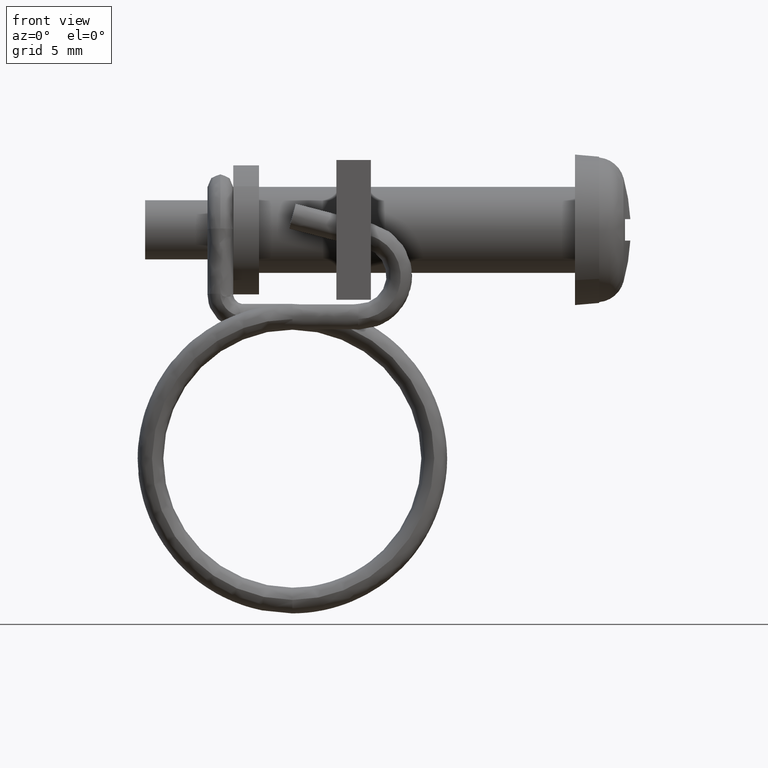
[diagram: clean part render]
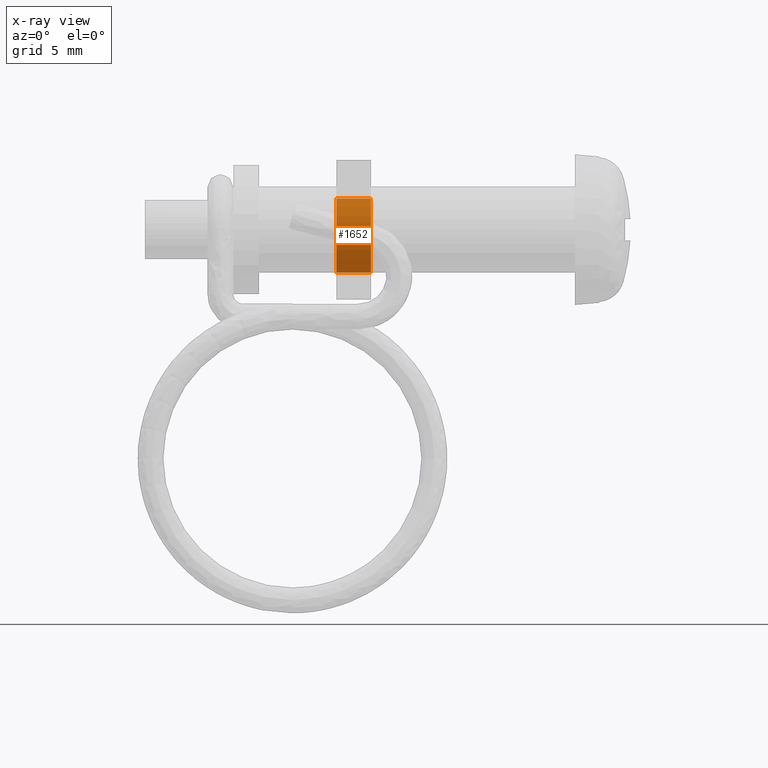
[diagram: x-ray — body ghosted, one internal face saturated and labeled with its STEP entity id]
A machine part, front view, then the same camera in x-ray: the body is ghosted and one INTERNAL B-rep face — a face not visible from any outside direction — is saturated and labeled: STEP entity #1652.
In plain terms, the highlighted face is a freeform B-spline surface patch.
Its self-contained STEP definition (entity closure, byte-faithful):
#1540=CARTESIAN_POINT('',(-11.140000000000001,-1.376709151387508,1.450748742024376));
#1541=CARTESIAN_POINT('',(-11.140000000000002,-2.827457893412082,0.074039590636868));
#1542=CARTESIAN_POINT('',(-11.140000000000001,-1.450748742024575,-1.376709151387707));
#1543=CARTESIAN_POINT('',(-11.140000000000002,-0.074039590637067,-2.827457893412282));
#1544=CARTESIAN_POINT('',(-11.140000000000001,1.376709151387508,-1.450748742024774));
#1545=CARTESIAN_POINT('',(-9.459000000000000,-1.376709151387508,1.450748742024376));
#1546=CARTESIAN_POINT('',(-9.459000000000000,-2.827457893412082,0.074039590636868));
#1547=CARTESIAN_POINT('',(-9.459000000000000,-1.450748742024575,-1.376709151387707));
#1548=CARTESIAN_POINT('',(-9.459000000000000,-0.074039590637067,-2.827457893412282));
#1549=CARTESIAN_POINT('',(-9.459000000000000,1.376709151387508,-1.450748742024774));
#1557=(BOUNDED_SURFACE()B_SPLINE_SURFACE(2,1,((#1540,#1545),(#1541,#1546),(#1542,#1547),(#1543,#1548),(#1544,#1549)),.UNSPECIFIED.,.F.,.F.,.U.)B_SPLINE_SURFACE_WITH_KNOTS((3,2,3),(2,2),(0.0,3.313708498984759,6.627416997969519),(0.0,1.0),.UNSPECIFIED.)GEOMETRIC_REPRESENTATION_ITEM()RATIONAL_B_SPLINE_SURFACE(((1.0,1.0),(0.707106781186548,0.707106781186548),(1.0,1.0),(0.707106781186548,0.707106781186548),(1.0,1.0)))REPRESENTATION_ITEM('')SURFACE());
#1558=CARTESIAN_POINT('',(-9.500000000001013,-1.376709074266977,1.450748699295708));
#1559=VERTEX_POINT('',#1558);
#1560=CARTESIAN_POINT('',(-9.500000000000000,-1.999999999999972,-0.000000336783941));
#1561=VERTEX_POINT('',#1560);
#1562=CARTESIAN_POINT('',(-9.500000000001013,-1.376709074266977,1.450748699295708));
#1563=CARTESIAN_POINT('',(-9.500000000000943,-1.499392462714734,1.334395431810573));
#1564=CARTESIAN_POINT('',(-9.500000000000748,-1.687975837321238,1.103312920688563));
#1565=CARTESIAN_POINT('',(-9.500000000000526,-1.877575154653843,0.723379978676688));
#1566=CARTESIAN_POINT('',(-9.500000000000240,-1.978176975130994,0.363516855559823));
#1567=CARTESIAN_POINT('',(-9.500000000000075,-2.000010629226742,0.118355257256438));
#1568=CARTESIAN_POINT('',(-9.500000000000000,-1.999999999999972,-0.000000336783941));
#1569=B_SPLINE_CURVE_WITH_KNOTS('',3,(#1562,#1563,#1564,#1565,#1566,#1567,#1568),.UNSPECIFIED.,.F.,.U.,(4,1,1,1,4),(9.544013E-009,0.507239891594567,0.887665216070837,1.268100458223756,1.623167408407754),.UNSPECIFIED.);
#1570=EDGE_CURVE('',#1559,#1561,#1569,.T.);
#1571=ORIENTED_EDGE('',*,*,#1570,.T.);
#1572=CARTESIAN_POINT('',(-9.500000000000000,0.0,-2.000000000000199));
#1573=VERTEX_POINT('',#1572);
#1574=CARTESIAN_POINT('',(-9.500000000000000,-1.999999999999972,-0.000000336783941));
#1575=CARTESIAN_POINT('',(-9.500000000000002,-2.000122377351887,-0.212727367355783));
#1576=CARTESIAN_POINT('',(-9.499999999999996,-1.940686505506102,-0.580803602736940));
#1577=CARTESIAN_POINT('',(-9.500000000000020,-1.728635326195522,-1.036331010046611));
#1578=CARTESIAN_POINT('',(-9.499999999999966,-1.499633899786106,-1.337260354587177));
#1579=CARTESIAN_POINT('',(-9.500000000000023,-1.248754649479233,-1.573201526338301));
#1580=CARTESIAN_POINT('',(-9.499999999999998,-0.983436195732444,-1.752850986347630));
#1581=CARTESIAN_POINT('',(-9.499999999999965,-0.654195604512761,-1.901215530452847));
#1582=CARTESIAN_POINT('',(-9.500000000000110,-0.327250715124761,-1.983116104057300));
#1583=CARTESIAN_POINT('',(-9.499999999999861,-0.098173220102669,-2.000001010079179));
#1584=CARTESIAN_POINT('',(-9.500000000000000,0.0,-2.000000000000199));
#1585=B_SPLINE_CURVE_WITH_KNOTS('',3,(#1574,#1575,#1576,#1577,#1578,#1579,#1580,#1581,#1582,#1583,#1584),.UNSPECIFIED.,.F.,.U.,(4,1,1,1,1,1,1,1,4),(0.000000032458224,0.638139644845912,1.104475304421766,1.497183811055401,1.767155784760902,2.135313981160367,2.454386273502320,2.847088447003053,3.141612175933704),.UNSPECIFIED.);
#1586=EDGE_CURVE('',#1561,#1573,#1585,.T.);
#1587=ORIENTED_EDGE('',*,*,#1586,.T.);
#1588=CARTESIAN_POINT('',(-9.500000000001013,1.376709074266970,-1.450748699296099));
#1589=VERTEX_POINT('',#1588);
#1590=CARTESIAN_POINT('',(-9.500000000000000,0.0,-2.000000000000199));
#1591=CARTESIAN_POINT('',(-9.500000000000078,0.102810418467720,-2.000004336512524));
#1592=CARTESIAN_POINT('',(-9.500000000000236,0.324250317078886,-1.982896339372798));
#1593=CARTESIAN_POINT('',(-9.500000000000471,0.640202976912796,-1.904506852817401));
#1594=CARTESIAN_POINT('',(-9.500000000000744,1.011337098057659,-1.743533821503788));
#1595=CARTESIAN_POINT('',(-9.500000000000922,1.244807458875841,-1.576015773665277));
#1596=CARTESIAN_POINT('',(-9.500000000001013,1.376709074266970,-1.450748699296099));
#1597=B_SPLINE_CURVE_WITH_KNOTS('',3,(#1590,#1591,#1592,#1593,#1594,#1595,#1596),.UNSPECIFIED.,.F.,.U.,(4,1,1,1,4),(7.946572E-009,0.308433144725803,0.664321835104169,0.972751184920335,1.518445293771588),.UNSPECIFIED.);
#1598=EDGE_CURVE('',#1573,#1589,#1597,.T.);
#1599=ORIENTED_EDGE('',*,*,#1598,.T.);
#1600=CARTESIAN_POINT('',(-11.100000000000000,1.376709074501425,-1.450748699073610));
#1601=VERTEX_POINT('',#1600);
#1602=CARTESIAN_POINT('',(-11.100000000000000,1.376709074501425,-1.450748699073610));
#1603=CARTESIAN_POINT('',(-9.500000000001013,1.376709074266970,-1.450748699296099));
#1604=QUASI_UNIFORM_CURVE('',1,(#1602,#1603),.UNSPECIFIED.,.F.,.U.);
#1605=EDGE_CURVE('',#1601,#1589,#1604,.T.);
#1606=ORIENTED_EDGE('',*,*,#1605,.F.);
#1607=CARTESIAN_POINT('',(-11.100000000000000,0.0,-2.000000000000199));
#1608=VERTEX_POINT('',#1607);
#1609=CARTESIAN_POINT('',(-11.100000000000000,0.0,-2.000000000000199));
#1610=CARTESIAN_POINT('',(-11.099999999999961,0.205639382410385,-2.000112963859508));
#1611=CARTESIAN_POINT('',(-11.100000000000041,0.529811863452965,-1.949523729459654));
#1612=CARTESIAN_POINT('',(-11.099999999999939,0.998368041933632,-1.752842869778089));
#1613=CARTESIAN_POINT('',(-11.100000000000080,1.244807055926934,-1.576013993087083));
#1614=CARTESIAN_POINT('',(-11.100000000000000,1.376709074501425,-1.450748699073610));
#1615=B_SPLINE_CURVE_WITH_KNOTS('',3,(#1609,#1610,#1611,#1612,#1613,#1614),.UNSPECIFIED.,.F.,.U.,(4,1,1,4),(7.946564E-009,0.616871906763878,0.972751185127391,1.518445294094814),.UNSPECIFIED.);
#1616=EDGE_CURVE('',#1608,#1601,#1615,.T.);
#1617=ORIENTED_EDGE('',*,*,#1616,.F.);
#1618=CARTESIAN_POINT('',(-11.100000000000000,-1.999999999999972,-0.000000336783941));
#1619=VERTEX_POINT('',#1618);
#1620=CARTESIAN_POINT('',(-11.100000000000000,-1.999999999999972,-0.000000336783941));
#1621=CARTESIAN_POINT('',(-11.100000000000010,-2.000124648842586,-0.212732485311596));
#1622=CARTESIAN_POINT('',(-11.099999999999980,-1.953886693790762,-0.498997774331133));
#1623=CARTESIAN_POINT('',(-11.100000000000010,-1.810049718910390,-0.865061326701595));
#1624=CARTESIAN_POINT('',(-11.100000000000000,-1.662011779378400,-1.130206038494378));
#1625=CARTESIAN_POINT('',(-11.099999999999980,-1.470600605423476,-1.366362965891259));
#1626=CARTESIAN_POINT('',(-11.100000000000010,-1.235148008203217,-1.582414398785151));
#1627=CARTESIAN_POINT('',(-11.099999999999991,-0.963028848828348,-1.766671292682256));
#1628=CARTESIAN_POINT('',(-11.100000000000030,-0.539906150651707,-1.948078772046985));
#1629=CARTESIAN_POINT('',(-11.099999999999939,-0.204543041479509,-2.000099627313582));
#1630=CARTESIAN_POINT('',(-11.100000000000000,0.0,-2.000000000000199));
#1631=B_SPLINE_CURVE_WITH_KNOTS('',3,(#1620,#1621,#1622,#1623,#1624,#1625,#1626,#1627,#1628,#1629,#1630),.UNSPECIFIED.,.F.,.U.,(4,1,1,1,1,1,1,1,4),(0.000000032458224,0.638139644845912,0.859035912454964,1.178107026100983,1.546271745031748,1.767155784760902,2.135313981160367,2.528019066484509,3.141612175933704),.UNSPECIFIED.);
#1632=EDGE_CURVE('',#1619,#1608,#1631,.T.);
#1633=ORIENTED_EDGE('',*,*,#1632,.F.);
#1634=CARTESIAN_POINT('',(-11.100000000000000,-1.376709074501432,1.450748699073218));
#1635=VERTEX_POINT('',#1634);
#1636=CARTESIAN_POINT('',(-11.100000000000000,-1.376709074501432,1.450748699073218));
#1637=CARTESIAN_POINT('',(-11.100000000000010,-1.523959254773044,1.311145847886524));
#1638=CARTESIAN_POINT('',(-11.099999999999991,-1.733390318683152,1.040686609792464));
#1639=CARTESIAN_POINT('',(-11.100000000000010,-1.948079781548132,0.540999866815604));
#1640=CARTESIAN_POINT('',(-11.099999999999980,-2.000096722479066,0.202905782223319));
#1641=CARTESIAN_POINT('',(-11.100000000000000,-1.999999999999972,-0.000000336783941));
#1642=B_SPLINE_CURVE_WITH_KNOTS('',3,(#1636,#1637,#1638,#1639,#1640,#1641),.UNSPECIFIED.,.F.,.U.,(4,1,1,4),(9.544038E-009,0.608688005844913,1.014479411779057,1.623167408084527),.UNSPECIFIED.);
#1643=EDGE_CURVE('',#1635,#1619,#1642,.T.);
#1644=ORIENTED_EDGE('',*,*,#1643,.F.);
#1645=CARTESIAN_POINT('',(-11.100000000000000,-1.376709074501432,1.450748699073218));
#1646=CARTESIAN_POINT('',(-9.500000000001013,-1.376709074266977,1.450748699295708));
#1647=QUASI_UNIFORM_CURVE('',1,(#1645,#1646),.UNSPECIFIED.,.F.,.U.);
#1648=EDGE_CURVE('',#1635,#1559,#1647,.T.);
#1649=ORIENTED_EDGE('',*,*,#1648,.T.);
#1650=EDGE_LOOP('',(#1571,#1587,#1599,#1606,#1617,#1633,#1644,#1649));
#1651=FACE_OUTER_BOUND('',#1650,.T.);
#1652=ADVANCED_FACE('',(#1651),#1557,.F.);